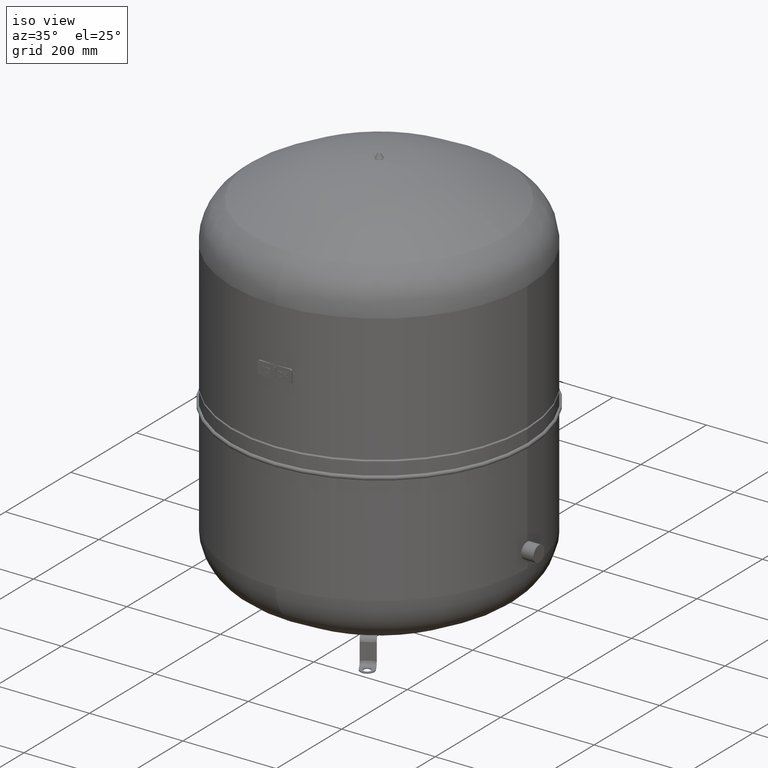
[diagram: clean part render]
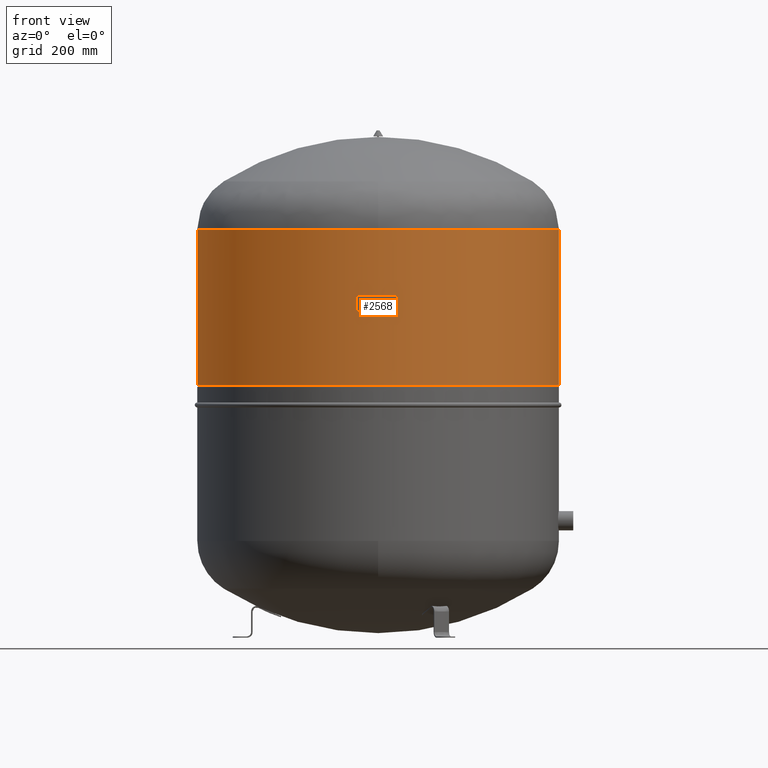
[diagram: tour spotlight — one face highlighted and labeled with its STEP entity id]
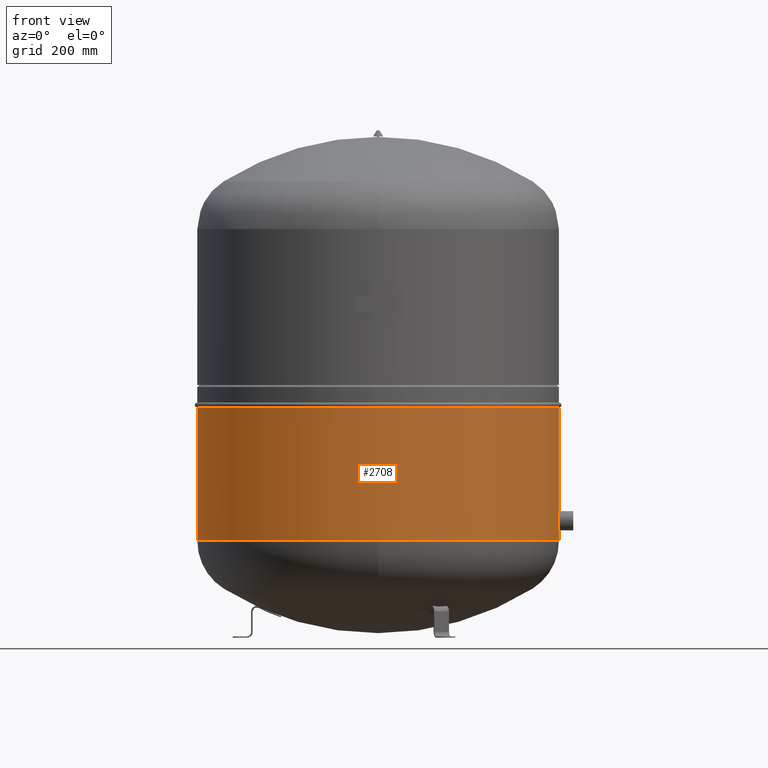
[diagram: tour spotlight — one face highlighted and labeled with its STEP entity id]
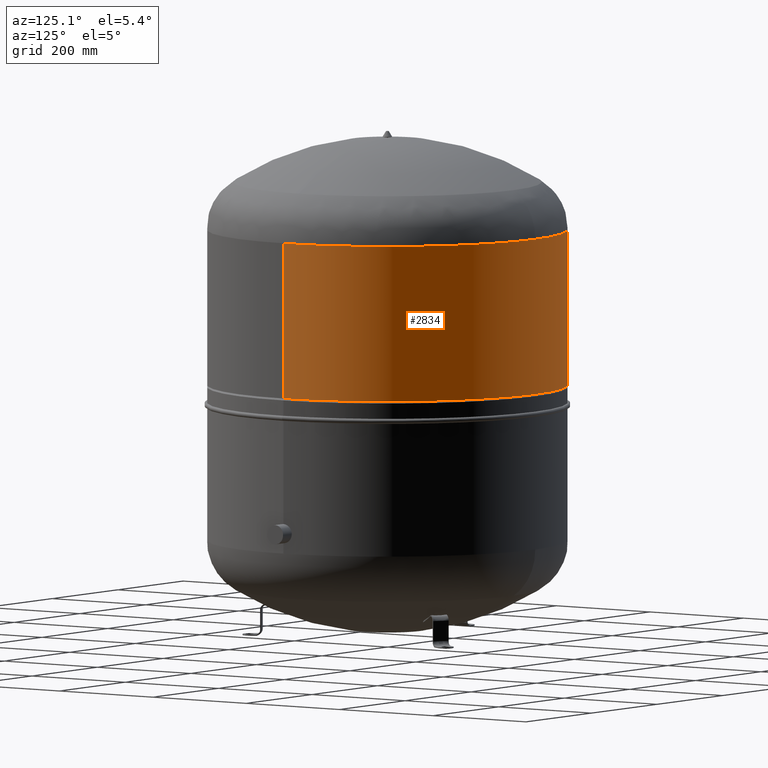
[diagram: tour spotlight — one face highlighted and labeled with its STEP entity id]
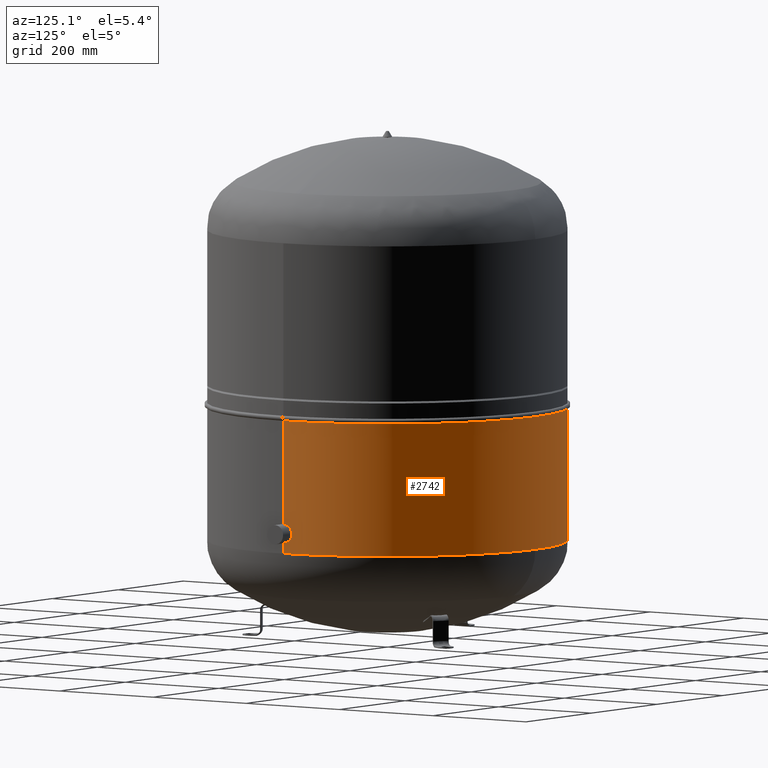
[diagram: tour spotlight — one face highlighted and labeled with its STEP entity id]
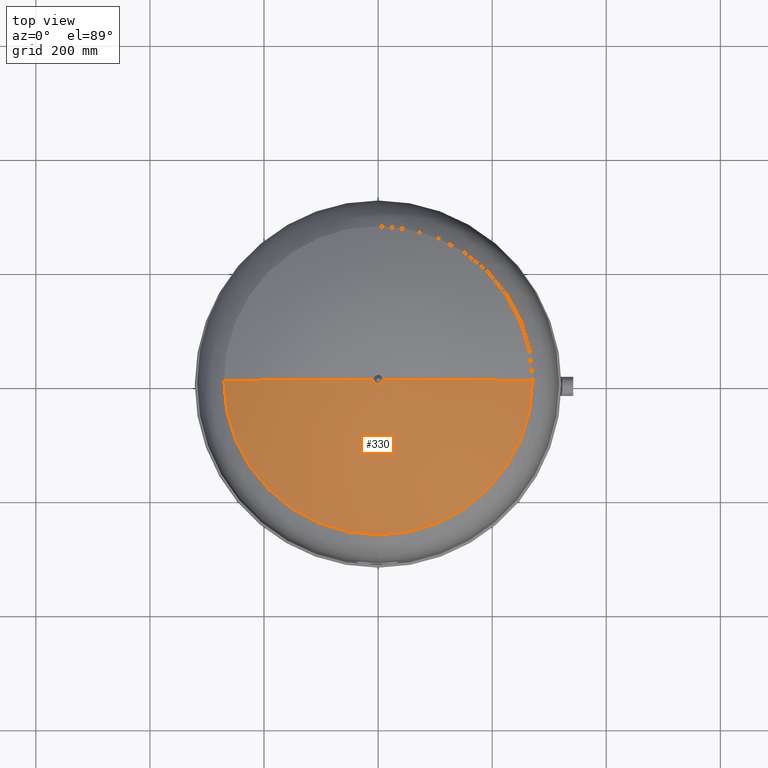
[diagram: tour spotlight — one face highlighted and labeled with its STEP entity id]
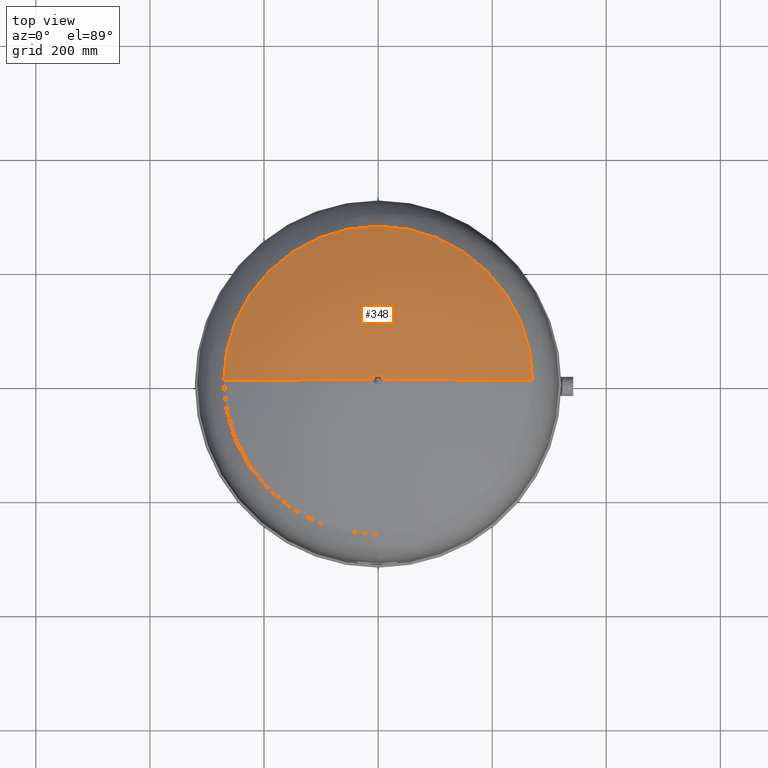
[diagram: tour spotlight — one face highlighted and labeled with its STEP entity id]
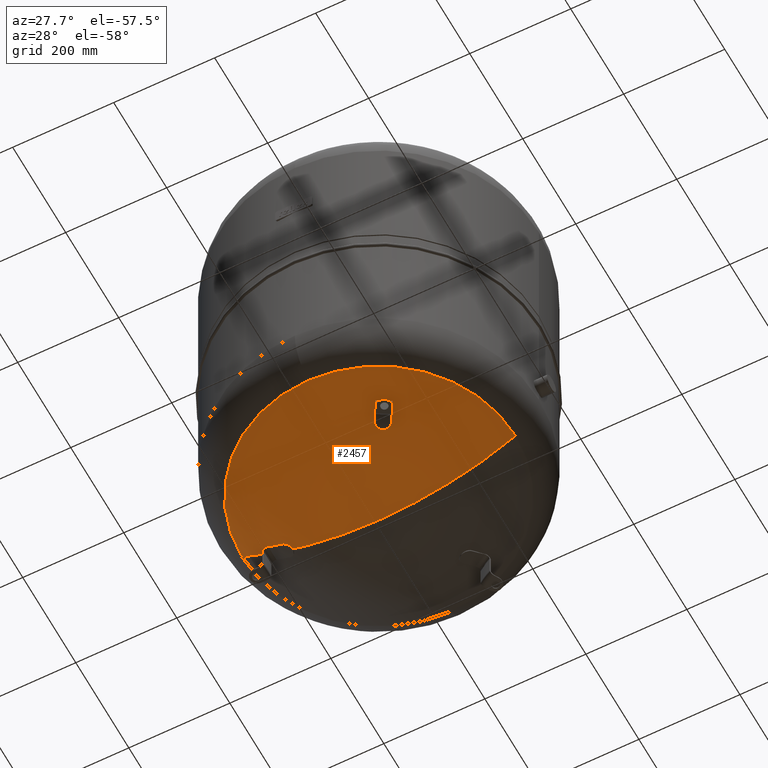
[diagram: tour spotlight — one face highlighted and labeled with its STEP entity id]
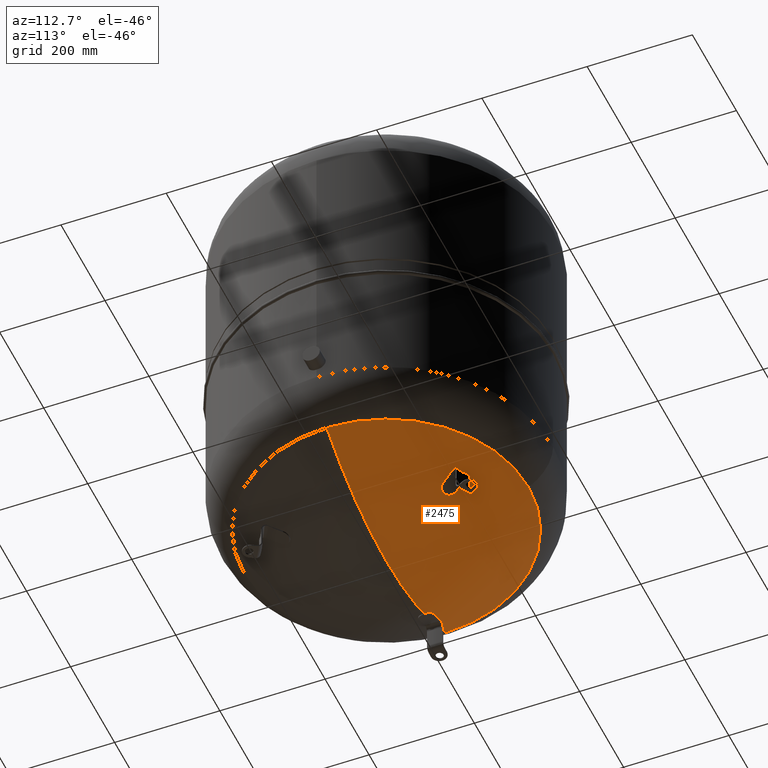
[diagram: tour spotlight — one face highlighted and labeled with its STEP entity id]
A machine part: a face-by-face anatomy tour. The part has 208 B-rep faces; the first image is the clean iso view, then the 8 largest visible faces are spotlighted one at a time (largest first), each with its STEP entity span.

Face 1 — front view, entity #2568. In plain terms, the highlighted cylindrical surface (partial cylindrical patch) has radius 317 mm, axis along (0, 0, 1).
Definition (entity closure, byte-faithful):
#2527=CARTESIAN_POINT('',(8.343982E-015,0.0,579.5));
#2528=DIRECTION('',(6.112808E-017,0.0,1.0));
#2529=DIRECTION('',(1.0,0.0,0.0));
#2530=AXIS2_PLACEMENT_3D('',#2527,#2528,#2529);
#2531=CYLINDRICAL_SURFACE('',#2530,317.0);
#2532=CARTESIAN_POINT('',(317.0,0.0,716.0));
#2533=VERTEX_POINT('',#2532);
#2534=CARTESIAN_POINT('',(316.99999999999994,0.0,443.0));
#2535=VERTEX_POINT('',#2534);
#2536=CARTESIAN_POINT('',(317.0,0.0,716.0));
#2537=DIRECTION('',(0.0,0.0,-1.0));
#2538=VECTOR('',#2537,273.0);
#2539=LINE('',#2536,#2538);
#2540=EDGE_CURVE('',#2533,#2535,#2539,.T.);
#2541=ORIENTED_EDGE('',*,*,#2540,.F.);
#2542=CARTESIAN_POINT('',(-317.0,-3.882002E-014,716.0));
#2543=VERTEX_POINT('',#2542);
#2544=CARTESIAN_POINT('',(1.668796E-014,0.0,716.0));
#2545=DIRECTION('',(0.0,0.0,1.0));
#2546=DIRECTION('',(1.0,0.0,0.0));
#2547=AXIS2_PLACEMENT_3D('',#2544,#2545,#2546);
#2548=CIRCLE('',#2547,317.0);
#2549=EDGE_CURVE('',#2543,#2533,#2548,.T.);
#2550=ORIENTED_EDGE('',*,*,#2549,.F.);
#2551=CARTESIAN_POINT('',(-317.0,-3.882002E-014,443.00000000000011));
#2552=VERTEX_POINT('',#2551);
#2553=CARTESIAN_POINT('',(-317.0,-3.882002E-014,716.0));
#2554=DIRECTION('',(0.0,0.0,-1.0));
#2555=VECTOR('',#2554,272.99999999999989);
#2556=LINE('',#2553,#2555);
#2557=EDGE_CURVE('',#2543,#2552,#2556,.T.);
#2558=ORIENTED_EDGE('',*,*,#2557,.T.);
#2559=CARTESIAN_POINT('',(1.972152E-030,0.0,443.00000000000006));
#2560=DIRECTION('',(0.0,0.0,1.0));
#2561=DIRECTION('',(1.0,0.0,0.0));
#2562=AXIS2_PLACEMENT_3D('',#2559,#2560,#2561);
#2563=CIRCLE('',#2562,316.99999999999994);
#2564=EDGE_CURVE('',#2552,#2535,#2563,.T.);
#2565=ORIENTED_EDGE('',*,*,#2564,.T.);
#2566=EDGE_LOOP('',(#2541,#2550,#2558,#2565));
#2567=FACE_OUTER_BOUND('',#2566,.T.);
#2568=ADVANCED_FACE('',(#2567),#2531,.T.);

Face 2 — front view, entity #2708. In plain terms, the highlighted cylindrical surface (partial cylindrical patch) has radius 317 mm, axis along (0, 0, 1).
Definition (entity closure, byte-faithful):
#2648=CARTESIAN_POINT('',(316.99999999999994,0.0,403.60000000000002));
#2649=VERTEX_POINT('',#2648);
#2658=CARTESIAN_POINT('',(-316.99999999999994,-3.882002E-014,403.60000000000002));
#2659=VERTEX_POINT('',#2658);
#2667=CARTESIAN_POINT('',(-2.408446E-015,0.0,403.60000000000002));
#2668=DIRECTION('',(0.0,0.0,1.0));
#2669=DIRECTION('',(1.0,0.0,0.0));
#2670=AXIS2_PLACEMENT_3D('',#2667,#2668,#2669);
#2671=CIRCLE('',#2670,316.99999999999994);
#2672=EDGE_CURVE('',#2659,#2649,#2671,.T.);
#2677=CARTESIAN_POINT('',(-9.548205E-015,0.0,286.79999999999995));
#2678=DIRECTION('',(6.112808E-017,0.0,1.0));
#2679=DIRECTION('',(1.0,0.0,0.0));
#2680=AXIS2_PLACEMENT_3D('',#2677,#2678,#2679);
#2681=CYLINDRICAL_SURFACE('',#2680,316.99999999999994);
#2682=CARTESIAN_POINT('',(317.0,0.0,169.99999999999994));
#2683=VERTEX_POINT('',#2682);
#2684=CARTESIAN_POINT('',(316.99999999999994,0.0,403.60000000000002));
#2685=DIRECTION('',(0.0,0.0,-1.0));
#2686=VECTOR('',#2685,233.60000000000008);
#2687=LINE('',#2684,#2686);
#2688=EDGE_CURVE('',#2649,#2683,#2687,.T.);
#2689=ORIENTED_EDGE('',*,*,#2688,.F.);
#2690=ORIENTED_EDGE('',*,*,#2672,.F.);
#2691=CARTESIAN_POINT('',(-316.99999999999994,-3.882002E-014,169.99999999999994));
#2692=VERTEX_POINT('',#2691);
#2693=CARTESIAN_POINT('',(-316.99999999999994,-3.882002E-014,403.60000000000002));
#2694=DIRECTION('',(0.0,0.0,-1.0));
#2695=VECTOR('',#2694,233.60000000000008);
#2696=LINE('',#2693,#2695);
#2697=EDGE_CURVE('',#2659,#2692,#2696,.T.);
#2698=ORIENTED_EDGE('',*,*,#2697,.T.);
#2699=CARTESIAN_POINT('',(-1.668796E-014,0.0,169.99999999999994));
#2700=DIRECTION('',(0.0,0.0,1.0));
#2701=DIRECTION('',(1.0,0.0,0.0));
#2702=AXIS2_PLACEMENT_3D('',#2699,#2700,#2701);
#2703=CIRCLE('',#2702,317.0);
#2704=EDGE_CURVE('',#2692,#2683,#2703,.T.);
#2705=ORIENTED_EDGE('',*,*,#2704,.T.);
#2706=EDGE_LOOP('',(#2689,#2690,#2698,#2705));
#2707=FACE_OUTER_BOUND('',#2706,.T.);
#2708=ADVANCED_FACE('',(#2707),#2681,.T.);

Face 3 — auxiliary view, entity #2834. In plain terms, the highlighted cylindrical surface (partial cylindrical patch) has radius 317 mm, axis along (0, 0, 1).
Definition (entity closure, byte-faithful):
#2532=CARTESIAN_POINT('',(317.0,0.0,716.0));
#2533=VERTEX_POINT('',#2532);
#2534=CARTESIAN_POINT('',(316.99999999999994,0.0,443.0));
#2535=VERTEX_POINT('',#2534);
#2536=CARTESIAN_POINT('',(317.0,0.0,716.0));
#2537=DIRECTION('',(0.0,0.0,-1.0));
#2538=VECTOR('',#2537,273.0);
#2539=LINE('',#2536,#2538);
#2540=EDGE_CURVE('',#2533,#2535,#2539,.T.);
#2542=CARTESIAN_POINT('',(-317.0,-3.882002E-014,716.0));
#2543=VERTEX_POINT('',#2542);
#2551=CARTESIAN_POINT('',(-317.0,-3.882002E-014,443.00000000000011));
#2552=VERTEX_POINT('',#2551);
#2553=CARTESIAN_POINT('',(-317.0,-3.882002E-014,716.0));
#2554=DIRECTION('',(0.0,0.0,-1.0));
#2555=VECTOR('',#2554,272.99999999999989);
#2556=LINE('',#2553,#2555);
#2557=EDGE_CURVE('',#2543,#2552,#2556,.T.);
#2802=CARTESIAN_POINT('',(1.972152E-030,0.0,443.00000000000006));
#2803=DIRECTION('',(0.0,0.0,1.0));
#2804=DIRECTION('',(1.0,0.0,0.0));
#2805=AXIS2_PLACEMENT_3D('',#2802,#2803,#2804);
#2806=CIRCLE('',#2805,316.99999999999994);
#2807=EDGE_CURVE('',#2535,#2552,#2806,.T.);
#2817=CARTESIAN_POINT('',(8.343982E-015,0.0,579.5));
#2818=DIRECTION('',(6.112808E-017,0.0,1.0));
#2819=DIRECTION('',(1.0,0.0,0.0));
#2820=AXIS2_PLACEMENT_3D('',#2817,#2818,#2819);
#2821=CYLINDRICAL_SURFACE('',#2820,317.0);
#2822=ORIENTED_EDGE('',*,*,#2540,.T.);
#2823=ORIENTED_EDGE('',*,*,#2807,.T.);
#2824=ORIENTED_EDGE('',*,*,#2557,.F.);
#2825=CARTESIAN_POINT('',(1.668796E-014,0.0,716.0));
#2826=DIRECTION('',(0.0,0.0,1.0));
#2827=DIRECTION('',(1.0,0.0,0.0));
#2828=AXIS2_PLACEMENT_3D('',#2825,#2826,#2827);
#2829=CIRCLE('',#2828,317.0);
#2830=EDGE_CURVE('',#2533,#2543,#2829,.T.);
#2831=ORIENTED_EDGE('',*,*,#2830,.F.);
#2832=EDGE_LOOP('',(#2822,#2823,#2824,#2831));
#2833=FACE_OUTER_BOUND('',#2832,.T.);
#2834=ADVANCED_FACE('',(#2833),#2821,.T.);

Face 4 — auxiliary view, entity #2742. In plain terms, the highlighted cylindrical surface (partial cylindrical patch) has radius 317 mm, axis along (0, 0, 1).
Definition (entity closure, byte-faithful):
#2648=CARTESIAN_POINT('',(316.99999999999994,0.0,403.60000000000002));
#2649=VERTEX_POINT('',#2648);
#2658=CARTESIAN_POINT('',(-316.99999999999994,-3.882002E-014,403.60000000000002));
#2659=VERTEX_POINT('',#2658);
#2682=CARTESIAN_POINT('',(317.0,0.0,169.99999999999994));
#2683=VERTEX_POINT('',#2682);
#2684=CARTESIAN_POINT('',(316.99999999999994,0.0,403.60000000000002));
#2685=DIRECTION('',(0.0,0.0,-1.0));
#2686=VECTOR('',#2685,233.60000000000008);
#2687=LINE('',#2684,#2686);
#2688=EDGE_CURVE('',#2649,#2683,#2687,.T.);
#2691=CARTESIAN_POINT('',(-316.99999999999994,-3.882002E-014,169.99999999999994));
#2692=VERTEX_POINT('',#2691);
#2693=CARTESIAN_POINT('',(-316.99999999999994,-3.882002E-014,403.60000000000002));
#2694=DIRECTION('',(0.0,0.0,-1.0));
#2695=VECTOR('',#2694,233.60000000000008);
#2696=LINE('',#2693,#2695);
#2697=EDGE_CURVE('',#2659,#2692,#2696,.T.);
#2714=CARTESIAN_POINT('',(-1.668796E-014,0.0,169.99999999999994));
#2715=DIRECTION('',(0.0,0.0,1.0));
#2716=DIRECTION('',(1.0,0.0,0.0));
#2717=AXIS2_PLACEMENT_3D('',#2714,#2715,#2716);
#2718=CIRCLE('',#2717,317.0);
#2719=EDGE_CURVE('',#2683,#2692,#2718,.T.);
#2725=CARTESIAN_POINT('',(-9.548205E-015,0.0,286.79999999999995));
#2726=DIRECTION('',(6.112808E-017,0.0,1.0));
#2727=DIRECTION('',(1.0,0.0,0.0));
#2728=AXIS2_PLACEMENT_3D('',#2725,#2726,#2727);
#2729=CYLINDRICAL_SURFACE('',#2728,316.99999999999994);
#2730=ORIENTED_EDGE('',*,*,#2688,.T.);
#2731=ORIENTED_EDGE('',*,*,#2719,.T.);
#2732=ORIENTED_EDGE('',*,*,#2697,.F.);
#2733=CARTESIAN_POINT('',(-2.408446E-015,0.0,403.60000000000002));
#2734=DIRECTION('',(0.0,0.0,1.0));
#2735=DIRECTION('',(1.0,0.0,0.0));
#2736=AXIS2_PLACEMENT_3D('',#2733,#2734,#2735);
#2737=CIRCLE('',#2736,316.99999999999994);
#2738=EDGE_CURVE('',#2649,#2659,#2737,.T.);
#2739=ORIENTED_EDGE('',*,*,#2738,.F.);
#2740=EDGE_LOOP('',(#2730,#2731,#2732,#2739));
#2741=FACE_OUTER_BOUND('',#2740,.T.);
#2742=ADVANCED_FACE('',(#2741),#2729,.T.);

Face 5 — top view, entity #330. In plain terms, the highlighted spherical surface has radius 509 mm.
Definition (entity closure, byte-faithful):
#250=CARTESIAN_POINT('',(8.065826E-015,-270.63902439024383,800.08643968129752));
#251=VERTEX_POINT('',#250);
#278=CARTESIAN_POINT('',(270.63902439024383,-9.350178E-014,800.08643968129752));
#279=VERTEX_POINT('',#278);
#287=CARTESIAN_POINT('',(-7.495146E-015,-1.431249E-014,800.08643968129752));
#288=DIRECTION('',(0.0,0.0,1.0));
#289=DIRECTION('',(-1.0,0.0,0.0));
#290=AXIS2_PLACEMENT_3D('',#287,#288,#289);
#291=CIRCLE('',#290,270.63902439024383);
#292=EDGE_CURVE('',#251,#279,#291,.T.);
#297=CARTESIAN_POINT('',(-1.005746E-013,-9.350178E-014,368.99999999999994));
#298=DIRECTION('',(0.0,0.0,1.0));
#299=DIRECTION('',(1.0,0.0,0.0));
#300=AXIS2_PLACEMENT_3D('',#297,#298,#299);
#301=SPHERICAL_SURFACE('',#300,509.00000000000006);
#302=CARTESIAN_POINT('',(-1.317408E-013,-9.350178E-014,878.0));
#303=VERTEX_POINT('',#302);
#304=CARTESIAN_POINT('',(-1.005746E-013,-9.350178E-014,368.99999999999994));
#305=DIRECTION('',(0.0,1.0,0.0));
#306=DIRECTION('',(1.0,0.0,0.0));
#307=AXIS2_PLACEMENT_3D('',#304,#305,#306);
#308=CIRCLE('',#307,509.00000000000006);
#309=EDGE_CURVE('',#303,#279,#308,.T.);
#310=ORIENTED_EDGE('',*,*,#309,.F.);
#311=CARTESIAN_POINT('',(-270.63902439024383,-1.431249E-014,800.08643968129763));
#312=VERTEX_POINT('',#311);
#313=CARTESIAN_POINT('',(-1.005746E-013,-9.350178E-014,368.99999999999994));
#314=DIRECTION('',(0.0,-1.0,0.0));
#315=DIRECTION('',(-1.0,0.0,0.0));
#316=AXIS2_PLACEMENT_3D('',#313,#314,#315);
#317=CIRCLE('',#316,509.00000000000006);
#318=EDGE_CURVE('',#303,#312,#317,.T.);
#319=ORIENTED_EDGE('',*,*,#318,.T.);
#320=CARTESIAN_POINT('',(-7.495146E-015,-1.431249E-014,800.08643968129752));
#321=DIRECTION('',(0.0,0.0,1.0));
#322=DIRECTION('',(-1.0,0.0,0.0));
#323=AXIS2_PLACEMENT_3D('',#320,#321,#322);
#324=CIRCLE('',#323,270.63902439024383);
#325=EDGE_CURVE('',#312,#251,#324,.T.);
#326=ORIENTED_EDGE('',*,*,#325,.T.);
#327=ORIENTED_EDGE('',*,*,#292,.T.);
#328=EDGE_LOOP('',(#310,#319,#326,#327));
#329=FACE_OUTER_BOUND('',#328,.T.);
#330=ADVANCED_FACE('',(#329),#301,.T.);

Face 6 — top view, entity #348. In plain terms, the highlighted spherical surface has radius 509 mm.
Definition (entity closure, byte-faithful):
#269=CARTESIAN_POINT('',(-2.507680E-014,270.63902439024383,800.08643968129752));
#270=VERTEX_POINT('',#269);
#278=CARTESIAN_POINT('',(270.63902439024383,-9.350178E-014,800.08643968129752));
#279=VERTEX_POINT('',#278);
#280=CARTESIAN_POINT('',(-7.495146E-015,-1.431249E-014,800.08643968129752));
#281=DIRECTION('',(0.0,0.0,1.0));
#282=DIRECTION('',(-1.0,0.0,0.0));
#283=AXIS2_PLACEMENT_3D('',#280,#281,#282);
#284=CIRCLE('',#283,270.63902439024383);
#285=EDGE_CURVE('',#279,#270,#284,.T.);
#302=CARTESIAN_POINT('',(-1.317408E-013,-9.350178E-014,878.0));
#303=VERTEX_POINT('',#302);
#304=CARTESIAN_POINT('',(-1.005746E-013,-9.350178E-014,368.99999999999994));
#305=DIRECTION('',(0.0,1.0,0.0));
#306=DIRECTION('',(1.0,0.0,0.0));
#307=AXIS2_PLACEMENT_3D('',#304,#305,#306);
#308=CIRCLE('',#307,509.00000000000006);
#309=EDGE_CURVE('',#303,#279,#308,.T.);
#311=CARTESIAN_POINT('',(-270.63902439024383,-1.431249E-014,800.08643968129763));
#312=VERTEX_POINT('',#311);
#313=CARTESIAN_POINT('',(-1.005746E-013,-9.350178E-014,368.99999999999994));
#314=DIRECTION('',(0.0,-1.0,0.0));
#315=DIRECTION('',(-1.0,0.0,0.0));
#316=AXIS2_PLACEMENT_3D('',#313,#314,#315);
#317=CIRCLE('',#316,509.00000000000006);
#318=EDGE_CURVE('',#303,#312,#317,.T.);
#331=CARTESIAN_POINT('',(-1.005746E-013,-9.350178E-014,368.99999999999994));
#332=DIRECTION('',(0.0,0.0,1.0));
#333=DIRECTION('',(1.0,0.0,0.0));
#334=AXIS2_PLACEMENT_3D('',#331,#332,#333);
#335=SPHERICAL_SURFACE('',#334,509.00000000000006);
#336=ORIENTED_EDGE('',*,*,#309,.T.);
#337=ORIENTED_EDGE('',*,*,#285,.T.);
#338=CARTESIAN_POINT('',(-7.495146E-015,-1.431249E-014,800.08643968129752));
#339=DIRECTION('',(0.0,0.0,1.0));
#340=DIRECTION('',(-1.0,0.0,0.0));
#341=AXIS2_PLACEMENT_3D('',#338,#339,#340);
#342=CIRCLE('',#341,270.63902439024383);
#343=EDGE_CURVE('',#270,#312,#342,.T.);
#344=ORIENTED_EDGE('',*,*,#343,.T.);
#345=ORIENTED_EDGE('',*,*,#318,.F.);
#346=EDGE_LOOP('',(#336,#337,#344,#345));
#347=FACE_OUTER_BOUND('',#346,.T.);
#348=ADVANCED_FACE('',(#347),#335,.T.);

Face 7 — auxiliary view, entity #2457. In plain terms, the highlighted spherical surface has radius 509 mm.
Definition (entity closure, byte-faithful):
#2379=CARTESIAN_POINT('',(8.065826E-015,-270.63902439024383,85.91356031870238));
#2380=VERTEX_POINT('',#2379);
#2405=CARTESIAN_POINT('',(-270.63902439024383,-1.431249E-014,85.913560318702423));
#2406=VERTEX_POINT('',#2405);
#2414=CARTESIAN_POINT('',(-7.495146E-015,-1.431249E-014,85.913560318702437));
#2415=DIRECTION('',(0.0,0.0,1.0));
#2416=DIRECTION('',(-1.0,0.0,0.0));
#2417=AXIS2_PLACEMENT_3D('',#2414,#2415,#2416);
#2418=CIRCLE('',#2417,270.63902439024383);
#2419=EDGE_CURVE('',#2406,#2380,#2418,.T.);
#2424=CARTESIAN_POINT('',(-1.005746E-013,-9.350178E-014,517.0));
#2425=DIRECTION('',(0.0,0.0,1.0));
#2426=DIRECTION('',(1.0,0.0,0.0));
#2427=AXIS2_PLACEMENT_3D('',#2424,#2425,#2426);
#2428=SPHERICAL_SURFACE('',#2427,509.00000000000006);
#2429=CARTESIAN_POINT('',(270.63902439024383,-9.350178E-014,85.91356031870248));
#2430=VERTEX_POINT('',#2429);
#2431=CARTESIAN_POINT('',(-1.317408E-013,-9.350178E-014,7.999999999999943));
#2432=VERTEX_POINT('',#2431);
#2433=CARTESIAN_POINT('',(-1.005746E-013,-9.350178E-014,517.0));
#2434=DIRECTION('',(0.0,1.0,0.0));
#2435=DIRECTION('',(1.0,0.0,0.0));
#2436=AXIS2_PLACEMENT_3D('',#2433,#2434,#2435);
#2437=CIRCLE('',#2436,509.00000000000006);
#2438=EDGE_CURVE('',#2430,#2432,#2437,.T.);
#2439=ORIENTED_EDGE('',*,*,#2438,.F.);
#2440=CARTESIAN_POINT('',(-7.495146E-015,-1.431249E-014,85.913560318702437));
#2441=DIRECTION('',(0.0,0.0,1.0));
#2442=DIRECTION('',(-1.0,0.0,0.0));
#2443=AXIS2_PLACEMENT_3D('',#2440,#2441,#2442);
#2444=CIRCLE('',#2443,270.63902439024383);
#2445=EDGE_CURVE('',#2380,#2430,#2444,.T.);
#2446=ORIENTED_EDGE('',*,*,#2445,.F.);
#2447=ORIENTED_EDGE('',*,*,#2419,.F.);
#2448=CARTESIAN_POINT('',(-1.005746E-013,-9.350178E-014,517.0));
#2449=DIRECTION('',(0.0,-1.0,0.0));
#2450=DIRECTION('',(-1.0,0.0,0.0));
#2451=AXIS2_PLACEMENT_3D('',#2448,#2449,#2450);
#2452=CIRCLE('',#2451,509.00000000000006);
#2453=EDGE_CURVE('',#2406,#2432,#2452,.T.);
#2454=ORIENTED_EDGE('',*,*,#2453,.T.);
#2455=EDGE_LOOP('',(#2439,#2446,#2447,#2454));
#2456=FACE_OUTER_BOUND('',#2455,.T.);
#2457=ADVANCED_FACE('',(#2456),#2428,.T.);

Face 8 — auxiliary view, entity #2475. In plain terms, the highlighted spherical surface has radius 509 mm.
Definition (entity closure, byte-faithful):
#2396=CARTESIAN_POINT('',(-2.507680E-014,270.63902439024383,85.91356031870248));
#2397=VERTEX_POINT('',#2396);
#2405=CARTESIAN_POINT('',(-270.63902439024383,-1.431249E-014,85.913560318702423));
#2406=VERTEX_POINT('',#2405);
#2407=CARTESIAN_POINT('',(-7.495146E-015,-1.431249E-014,85.913560318702437));
#2408=DIRECTION('',(0.0,0.0,1.0));
#2409=DIRECTION('',(-1.0,0.0,0.0));
#2410=AXIS2_PLACEMENT_3D('',#2407,#2408,#2409);
#2411=CIRCLE('',#2410,270.63902439024383);
#2412=EDGE_CURVE('',#2397,#2406,#2411,.T.);
#2429=CARTESIAN_POINT('',(270.63902439024383,-9.350178E-014,85.91356031870248));
#2430=VERTEX_POINT('',#2429);
#2431=CARTESIAN_POINT('',(-1.317408E-013,-9.350178E-014,7.999999999999943));
#2432=VERTEX_POINT('',#2431);
#2433=CARTESIAN_POINT('',(-1.005746E-013,-9.350178E-014,517.0));
#2434=DIRECTION('',(0.0,1.0,0.0));
#2435=DIRECTION('',(1.0,0.0,0.0));
#2436=AXIS2_PLACEMENT_3D('',#2433,#2434,#2435);
#2437=CIRCLE('',#2436,509.00000000000006);
#2438=EDGE_CURVE('',#2430,#2432,#2437,.T.);
#2448=CARTESIAN_POINT('',(-1.005746E-013,-9.350178E-014,517.0));
#2449=DIRECTION('',(0.0,-1.0,0.0));
#2450=DIRECTION('',(-1.0,0.0,0.0));
#2451=AXIS2_PLACEMENT_3D('',#2448,#2449,#2450);
#2452=CIRCLE('',#2451,509.00000000000006);
#2453=EDGE_CURVE('',#2406,#2432,#2452,.T.);
#2458=CARTESIAN_POINT('',(-1.005746E-013,-9.350178E-014,517.0));
#2459=DIRECTION('',(0.0,0.0,1.0));
#2460=DIRECTION('',(1.0,0.0,0.0));
#2461=AXIS2_PLACEMENT_3D('',#2458,#2459,#2460);
#2462=SPHERICAL_SURFACE('',#2461,509.00000000000006);
#2463=ORIENTED_EDGE('',*,*,#2438,.T.);
#2464=ORIENTED_EDGE('',*,*,#2453,.F.);
#2465=ORIENTED_EDGE('',*,*,#2412,.F.);
#2466=CARTESIAN_POINT('',(-7.495146E-015,-1.431249E-014,85.913560318702437));
#2467=DIRECTION('',(0.0,0.0,1.0));
#2468=DIRECTION('',(-1.0,0.0,0.0));
#2469=AXIS2_PLACEMENT_3D('',#2466,#2467,#2468);
#2470=CIRCLE('',#2469,270.63902439024383);
#2471=EDGE_CURVE('',#2430,#2397,#2470,.T.);
#2472=ORIENTED_EDGE('',*,*,#2471,.F.);
#2473=EDGE_LOOP('',(#2463,#2464,#2465,#2472));
#2474=FACE_OUTER_BOUND('',#2473,.T.);
#2475=ADVANCED_FACE('',(#2474),#2462,.T.);